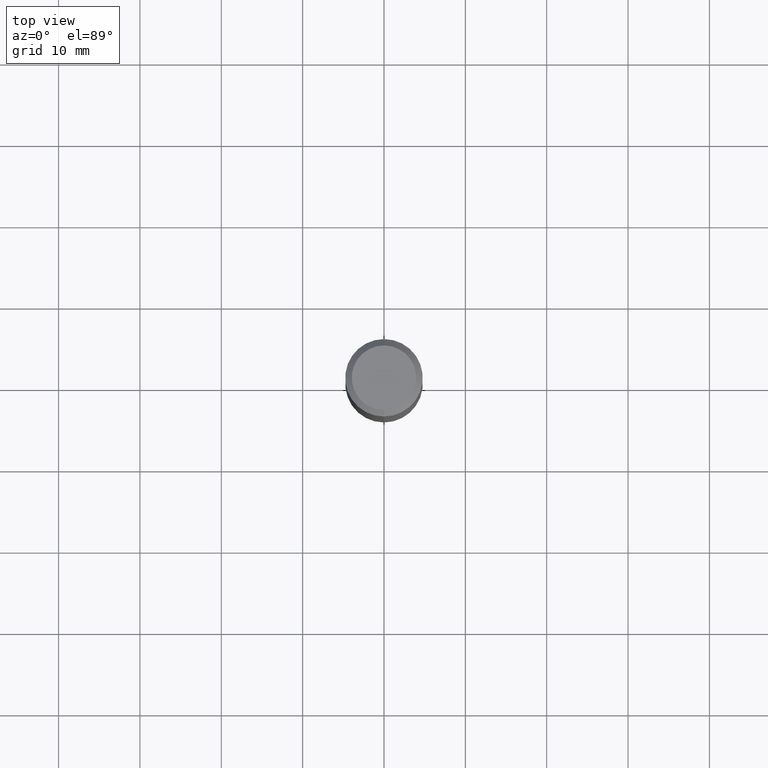
[diagram: clean part render]
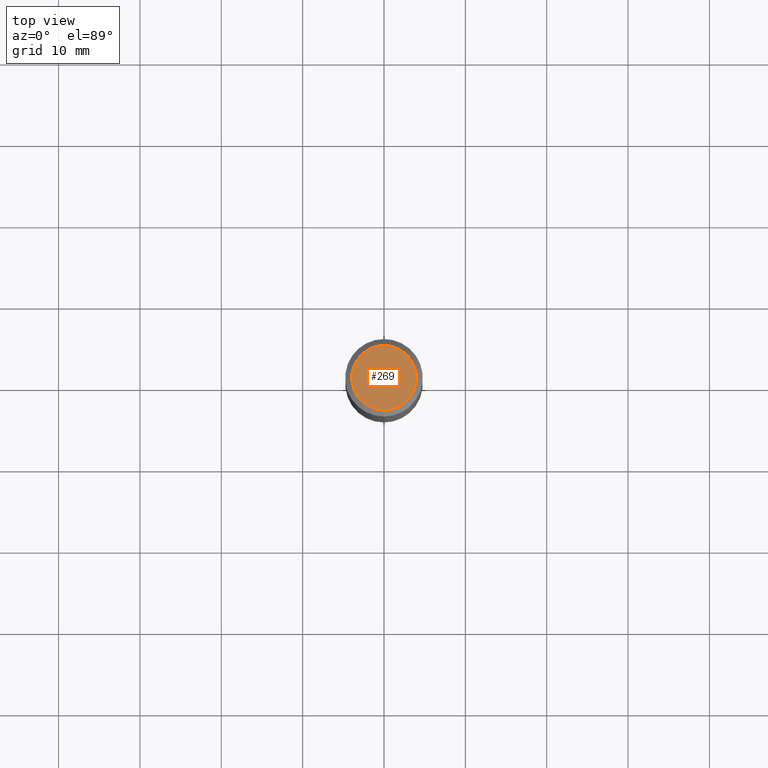
[diagram: same view with one face highlighted and labeled with its STEP entity id]
A machine part, top view. The second image highlights one B-rep face of the part: STEP entity #269.
In plain terms, the highlighted planar face has unit normal (0, -0, -1).
Its self-contained STEP definition (entity closure, byte-faithful):
#11 = DIRECTION ( 'NONE',  ( 2.676116305263811246E-29, -3.161180992522094459E-15, -1.000000000000000000 ) ) ;
#23 = AXIS2_PLACEMENT_3D ( 'NONE', #211, #303, #85 ) ;
#26 = VERTEX_POINT ( 'NONE', #361 ) ;
#32 = CARTESIAN_POINT ( 'NONE',  ( 1.200196710227326894E-15, 0.1562499999999999445, -4.302941219615301370E-16 ) ) ;
#50 = DIRECTION ( 'NONE',  ( 6.982962677686265922E-15, 1.000000000000000000, -3.161180992522094459E-15 ) ) ;
#67 = VERTEX_POINT ( 'NONE', #32 ) ;
#76 = PLANE ( 'NONE',  #406 ) ;
#85 = DIRECTION ( 'NONE',  ( -6.982962677686265922E-15, -1.000000000000000000, 3.161180992522094459E-15 ) ) ;
#88 = CIRCLE ( 'NONE', #23, 0.1562500000000004163 ) ;
#97 = ORIENTED_EDGE ( 'NONE', *, *, #127, .T. ) ;
#100 = CARTESIAN_POINT ( 'NONE',  ( -3.397982428467409796E-30, -4.866104238714466701E-16, 6.364040812004835480E-17 ) ) ;
#127 = EDGE_CURVE ( 'NONE', #26, #67, #208, .T. ) ;
#144 = FACE_OUTER_BOUND ( 'NONE', #407, .T. ) ;
#158 = ORIENTED_EDGE ( 'NONE', *, *, #245, .T. ) ;
#205 = CARTESIAN_POINT ( 'NONE',  ( 1.091087918388478582E-15, 0.1562499999999999445, -4.525523987551353755E-16 ) ) ;
#208 = CIRCLE ( 'NONE', #339, 0.1562500000000004163 ) ;
#211 = CARTESIAN_POINT ( 'NONE',  ( -3.397982428467409796E-30, -4.866104238714466701E-16, 6.364040812004835480E-17 ) ) ;
#231 = DIRECTION ( 'NONE',  ( -2.676116305263811806E-29, 3.161180992522094064E-15, 1.000000000000000000 ) ) ;
#245 = EDGE_CURVE ( 'NONE', #67, #26, #88, .T. ) ;
#269 = ADVANCED_FACE ( 'NONE', ( #144 ), #76, .F. ) ;
#303 = DIRECTION ( 'NONE',  ( -2.676116305263811806E-29, 3.161180992522094064E-15, 1.000000000000000000 ) ) ;
#326 = DIRECTION ( 'NONE',  ( -6.982962677686265922E-15, -1.000000000000000000, 3.161180992522094459E-15 ) ) ;
#339 = AXIS2_PLACEMENT_3D ( 'NONE', #100, #231, #326 ) ;
#361 = CARTESIAN_POINT ( 'NONE',  ( -1.179148093366988101E-15, -0.1562500000000008882, 5.575749382016267973E-16 ) ) ;
#406 = AXIS2_PLACEMENT_3D ( 'NONE', #205, #11, #50 ) ;
#407 = EDGE_LOOP ( 'NONE', ( #158, #97 ) ) ;